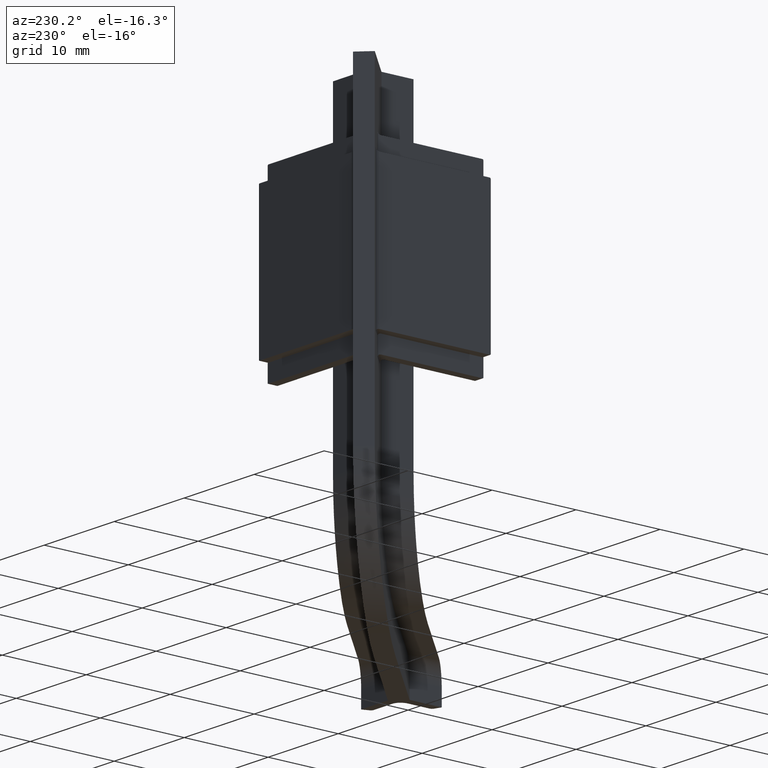
[diagram: clean part render]
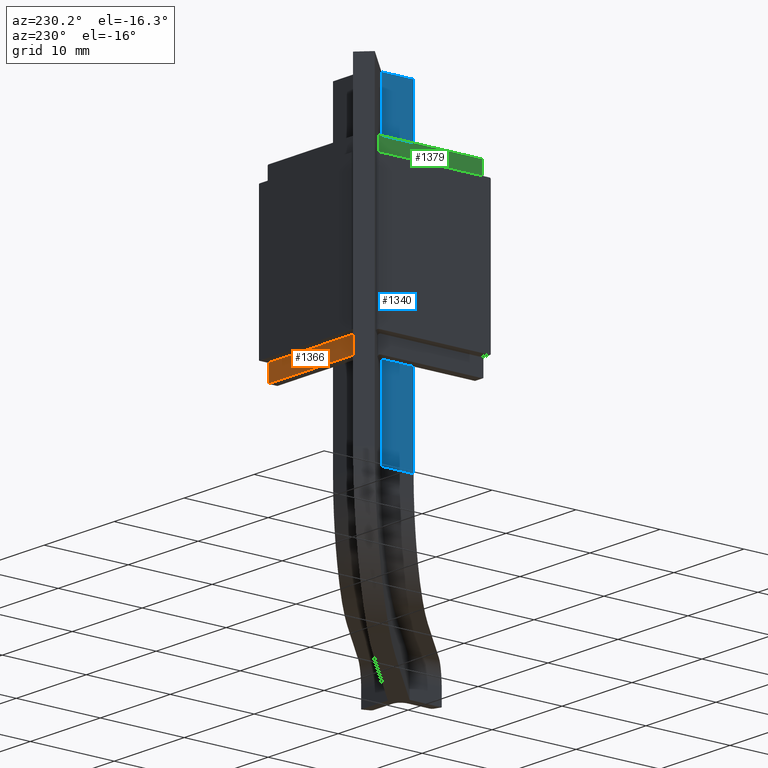
[diagram: same view with three faces highlighted in distinct colors, each labeled with its STEP entity id]
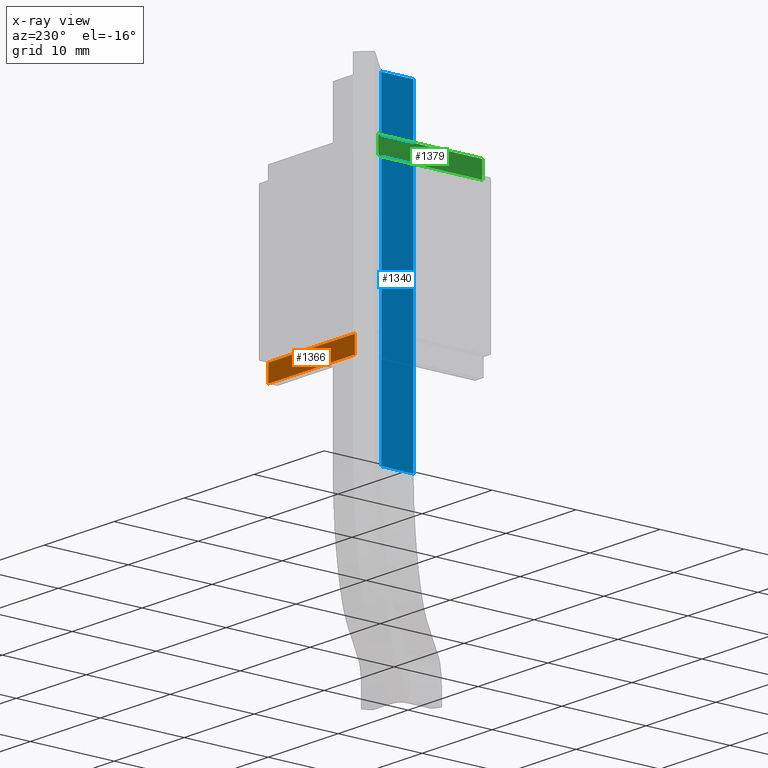
[diagram: x-ray of the same camera — body ghosted, the three highlighted faces saturated]
A machine part, auxiliary view with three faces highlighted in distinct colors.
The next image is the same camera in x-ray (body ghosted, the three faces saturated) — at least one of them is partly hidden behind the body in this view.
Their STEP definitions:

[orange] entity #1366 — the highlighted planar face has unit normal (0, -1, 0).
#28=ELLIPSE('',#1487,0.424264068711928,0.3);
#158=FACE_OUTER_BOUND('',#240,.T.);
#240=EDGE_LOOP('',(#1038,#1039,#1040,#1041,#1042));
#352=LINE('',#2332,#472);
#367=LINE('',#2371,#487);
#369=LINE('',#2375,#489);
#370=LINE('',#2376,#490);
#472=VECTOR('',#1703,10.);
#487=VECTOR('',#1742,10.);
#489=VECTOR('',#1746,10.);
#490=VECTOR('',#1747,10.);
#610=VERTEX_POINT('',#2328);
#612=VERTEX_POINT('',#2331);
#614=VERTEX_POINT('',#2337);
#624=VERTEX_POINT('',#2370);
#625=VERTEX_POINT('',#2374);
#757=EDGE_CURVE('',#610,#612,#352,.T.);
#763=EDGE_CURVE('',#612,#614,#28,.T.);
#777=EDGE_CURVE('',#624,#614,#367,.T.);
#779=EDGE_CURVE('',#625,#610,#369,.T.);
#780=EDGE_CURVE('',#624,#625,#370,.T.);
#1038=ORIENTED_EDGE('',*,*,#757,.F.);
#1039=ORIENTED_EDGE('',*,*,#779,.F.);
#1040=ORIENTED_EDGE('',*,*,#780,.F.);
#1041=ORIENTED_EDGE('',*,*,#777,.T.);
#1042=ORIENTED_EDGE('',*,*,#763,.F.);
#1317=PLANE('',#1496);
#1366=ADVANCED_FACE('',(#158),#1317,.F.);
#1487=AXIS2_PLACEMENT_3D('',#2343,#1713,#1714);
#1496=AXIS2_PLACEMENT_3D('',#2373,#1744,#1745);
#1703=DIRECTION('',(4.50257115542424E-16,-6.16790569236197E-16,-1.));
#1713=DIRECTION('center_axis',(-2.22044604925031E-16,1.,-6.16790569236197E-16));
#1714=DIRECTION('ref_axis',(-1.,-1.73472347597681E-16,1.06308343556714E-15));
#1742=DIRECTION('',(-1.,-2.22044604925031E-16,0.));
#1744=DIRECTION('center_axis',(2.22044604925031E-16,-1.,6.16790569236197E-16));
#1745=DIRECTION('ref_axis',(-1.36955018267537E-31,6.16790569236197E-16,
1.));
#1746=DIRECTION('',(-1.,-2.22044604925031E-16,0.));
#1747=DIRECTION('',(-1.36955018267537E-31,6.16790569236197E-16,1.));
#2328=CARTESIAN_POINT('',(-1.41152236891498,54.1825901807805,-8.44999999999998));
#2331=CARTESIAN_POINT('',(-1.41152236891499,54.1825901807805,-10.537867965644));
#2332=CARTESIAN_POINT('',(-1.411522368915,54.1825901807805,15.571477125261));
#2337=CARTESIAN_POINT('',(-1.11152236891499,54.1825901807805,-10.45));
#2343=CARTESIAN_POINT('Origin',(-1.11152236891499,54.1825901807805,-10.75));
#2370=CARTESIAN_POINT('',(10.9325901807805,54.1825901807805,-10.45));
#2371=CARTESIAN_POINT('',(101.23259018078,54.1825901807805,-10.45));
#2373=CARTESIAN_POINT('Origin',(101.23259018078,54.1825901807805,-8.44999999999998));
#2374=CARTESIAN_POINT('',(10.9325901807805,54.1825901807805,-8.44999999999998));
#2375=CARTESIAN_POINT('',(101.23259018078,54.1825901807805,-8.44999999999998));
#2376=CARTESIAN_POINT('',(10.9325901807805,54.1825901807805,-4.22499999999998));

[blue] entity #1340 — the highlighted planar face has unit normal (-1, -0, 0).
#132=FACE_OUTER_BOUND('',#214,.T.);
#214=EDGE_LOOP('',(#909,#910,#911,#912));
#321=LINE('',#1999,#441);
#328=LINE('',#2015,#448);
#329=LINE('',#2021,#449);
#330=LINE('',#2022,#450);
#441=VECTOR('',#1590,10.);
#448=VECTOR('',#1603,10.);
#449=VECTOR('',#1610,10.);
#450=VECTOR('',#1611,10.);
#560=VERTEX_POINT('',#1995);
#562=VERTEX_POINT('',#1998);
#568=VERTEX_POINT('',#2014);
#570=VERTEX_POINT('',#2020);
#689=EDGE_CURVE('',#562,#560,#321,.T.);
#697=EDGE_CURVE('',#562,#568,#328,.T.);
#700=EDGE_CURVE('',#560,#570,#329,.T.);
#701=EDGE_CURVE('',#570,#568,#330,.T.);
#909=ORIENTED_EDGE('',*,*,#689,.T.);
#910=ORIENTED_EDGE('',*,*,#700,.T.);
#911=ORIENTED_EDGE('',*,*,#701,.T.);
#912=ORIENTED_EDGE('',*,*,#697,.F.);
#1308=PLANE('',#1448);
#1340=ADVANCED_FACE('',(#132),#1308,.T.);
#1448=AXIS2_PLACEMENT_3D('',#2019,#1608,#1609);
#1590=DIRECTION('',(-2.22044604925031E-16,1.,4.75190061806286E-32));
#1603=DIRECTION('',(0.,0.,-1.));
#1608=DIRECTION('center_axis',(-1.,-2.22044604925031E-16,0.));
#1609=DIRECTION('ref_axis',(0.,0.,1.));
#1610=DIRECTION('',(0.,0.,-1.));
#1611=DIRECTION('',(2.22044604925031E-16,-1.,1.63785376900147E-16));
#1995=CARTESIAN_POINT('',(-0.0999999999999912,49.9183766184074,17.6));
#1998=CARTESIAN_POINT('',(-0.0999999999999912,46.1,17.6));
#1999=CARTESIAN_POINT('',(-0.0999999999999868,24.9591883092037,17.6));
#2014=CARTESIAN_POINT('',(-0.0999999999999912,46.1,-20.));
#2015=CARTESIAN_POINT('',(-0.0999999999999912,46.1,20.));
#2019=CARTESIAN_POINT('Origin',(-0.0999999999999912,49.9183766184074,20.));
#2020=CARTESIAN_POINT('',(-0.0999999999999912,49.9183766184074,-20.));
#2021=CARTESIAN_POINT('',(-0.0999999999999912,49.9183766184074,20.));
#2022=CARTESIAN_POINT('',(-0.099999999999989,49.9183766184074,-20.));

[green] entity #1379 — the highlighted planar face has unit normal (-1, 0, 0).
#36=ELLIPSE('',#1508,0.424264068711929,0.3);
#40=ELLIPSE('',#1514,0.424264068711929,0.3);
#171=FACE_OUTER_BOUND('',#253,.T.);
#253=EDGE_LOOP('',(#1103,#1104,#1105,#1106,#1107,#1108));
#379=LINE('',#2433,#499);
#394=LINE('',#2472,#514);
#396=LINE('',#2476,#516);
#397=LINE('',#2477,#517);
#499=VECTOR('',#1784,10.);
#514=VECTOR('',#1823,10.);
#516=VECTOR('',#1827,10.);
#517=VECTOR('',#1828,10.);
#639=VERTEX_POINT('',#2415);
#640=VERTEX_POINT('',#2417);
#643=VERTEX_POINT('',#2432);
#645=VERTEX_POINT('',#2438);
#655=VERTEX_POINT('',#2471);
#656=VERTEX_POINT('',#2475);
#796=EDGE_CURVE('',#640,#639,#36,.T.);
#800=EDGE_CURVE('',#640,#643,#379,.T.);
#806=EDGE_CURVE('',#643,#645,#40,.T.);
#820=EDGE_CURVE('',#655,#645,#394,.T.);
#822=EDGE_CURVE('',#656,#639,#396,.T.);
#823=EDGE_CURVE('',#655,#656,#397,.T.);
#1103=ORIENTED_EDGE('',*,*,#800,.F.);
#1104=ORIENTED_EDGE('',*,*,#796,.T.);
#1105=ORIENTED_EDGE('',*,*,#822,.F.);
#1106=ORIENTED_EDGE('',*,*,#823,.F.);
#1107=ORIENTED_EDGE('',*,*,#820,.T.);
#1108=ORIENTED_EDGE('',*,*,#806,.F.);
#1323=PLANE('',#1523);
#1379=ADVANCED_FACE('',(#171),#1323,.T.);
#1508=AXIS2_PLACEMENT_3D('',#2418,#1777,#1778);
#1514=AXIS2_PLACEMENT_3D('',#2444,#1794,#1795);
#1523=AXIS2_PLACEMENT_3D('',#2474,#1825,#1826);
#1777=DIRECTION('center_axis',(-1.,0.,4.93432455388958E-16));
#1778=DIRECTION('ref_axis',(2.89120579329444E-17,1.,-8.17756488897799E-17));
#1784=DIRECTION('',(4.93432455388958E-16,-5.48943606620216E-16,1.));
#1794=DIRECTION('center_axis',(-1.,0.,4.93432455388958E-16));
#1795=DIRECTION('ref_axis',(-1.23473323221491E-30,1.,4.088782444489E-17));
#1823=DIRECTION('',(0.,1.,0.));
#1825=DIRECTION('center_axis',(-1.,0.,4.93432455388958E-16));
#1826=DIRECTION('ref_axis',(4.93432455388958E-16,0.,1.));
#1827=DIRECTION('',(0.,1.,0.));
#1828=DIRECTION('',(-4.93432455388958E-16,0.,-1.));
#2415=CARTESIAN_POINT('',(-2.95,52.3441125496954,8.45000000000002));
#2417=CARTESIAN_POINT('',(-2.94999999999999,52.6441125496954,8.53786796564405));
#2418=CARTESIAN_POINT('Origin',(-2.95,52.3441125496954,8.75000000000002));
#2432=CARTESIAN_POINT('',(-2.94999999999999,52.6441125496954,10.5378679656441));
#2433=CARTESIAN_POINT('',(-2.94999999999999,52.6441125496954,25.0214771252611));
#2438=CARTESIAN_POINT('',(-2.95,52.3441125496954,10.45));
#2444=CARTESIAN_POINT('Origin',(-2.95,52.3441125496954,10.75));
#2471=CARTESIAN_POINT('',(-2.95,40.3,10.45));
#2472=CARTESIAN_POINT('',(-2.95,-50.,10.45));
#2474=CARTESIAN_POINT('Origin',(-2.95,-50.,10.45));
#2475=CARTESIAN_POINT('',(-2.95,40.3,8.45000000000002));
#2476=CARTESIAN_POINT('',(-2.95,-50.,8.45000000000002));
#2477=CARTESIAN_POINT('',(-2.95,40.3,5.22500000000002));